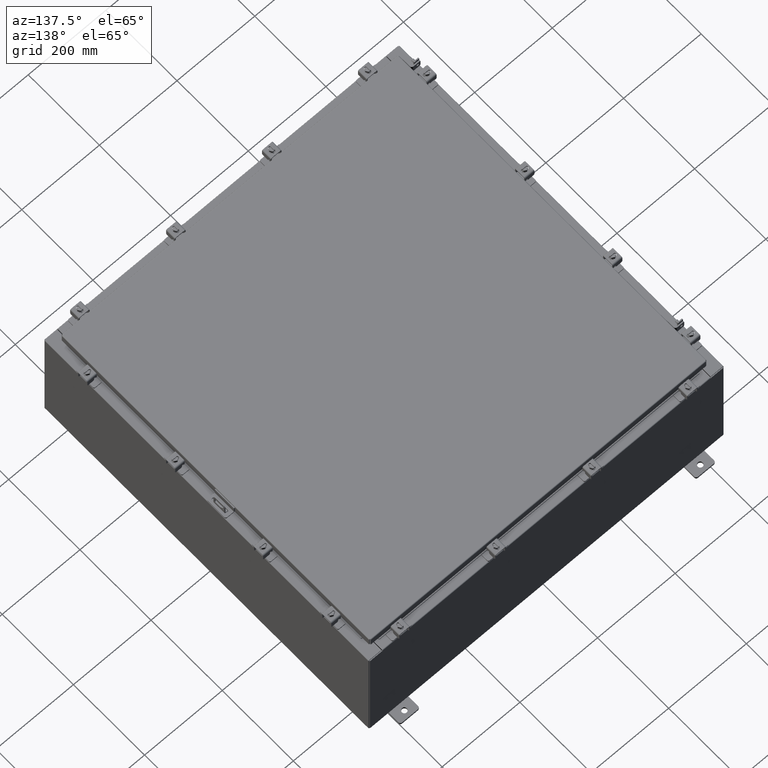
[diagram: clean part render]
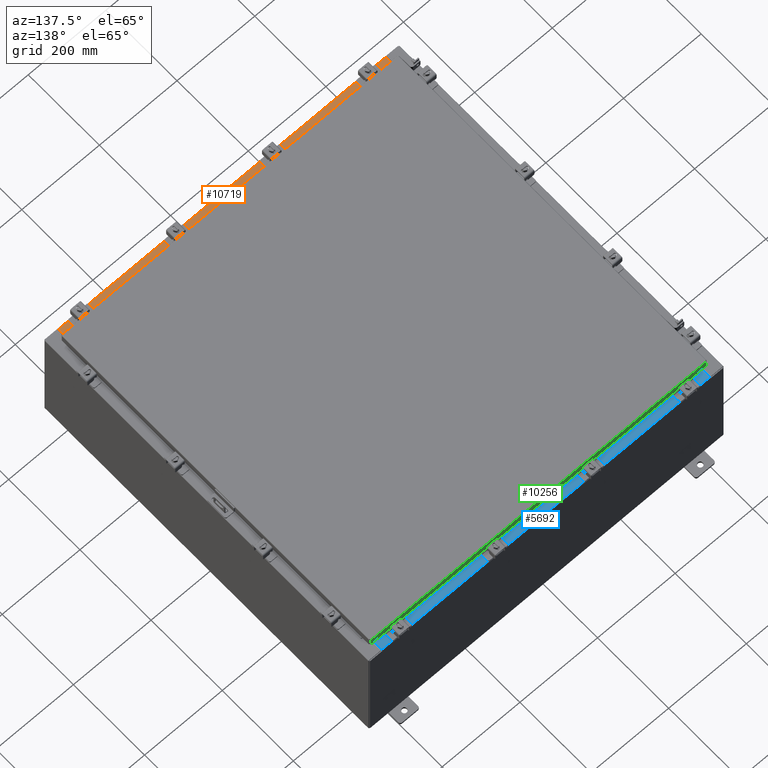
[diagram: same view with three faces highlighted in distinct colors, each labeled with its STEP entity id]
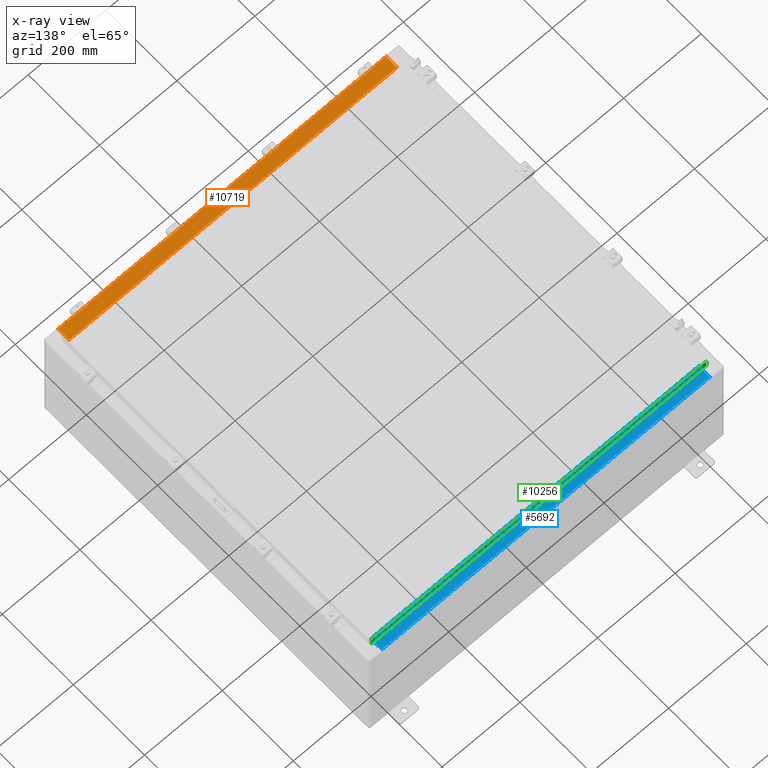
[diagram: x-ray of the same camera — body ghosted, the three highlighted faces saturated]
A machine part, auxiliary view with three faces highlighted in distinct colors.
The next image is the same camera in x-ray (body ghosted, the three faces saturated) — at least one of them is partly hidden behind the body in this view.
Their STEP definitions:

[orange] entity #10719 — the highlighted planar face has unit normal (-0, -0, 1).
#785 = ORIENTED_EDGE ( 'NONE', *, *, #17937, .F. ) ;
#2306 = PLANE ( 'NONE',  #18020 ) ;
#3150 = VECTOR ( 'NONE', #19606, 39.37007874015748100 ) ;
#3269 = DIRECTION ( 'NONE',  ( -0.0000000000000000000, 1.000000000000000000, -2.674785894579892700E-015 ) ) ;
#3815 = VERTEX_POINT ( 'NONE', #21707 ) ;
#4048 = VERTEX_POINT ( 'NONE', #9841 ) ;
#5089 = VERTEX_POINT ( 'NONE', #18808 ) ;
#5326 = CARTESIAN_POINT ( 'NONE',  ( -16.63719999999999600, -0.07469999999999973900, 5.999999999999999100 ) ) ;
#6332 = CARTESIAN_POINT ( 'NONE',  ( 16.63720000000000400, -1.300299999999999800, 6.000000000000003600 ) ) ;
#8162 = VECTOR ( 'NONE', #14498, 39.37007874015748100 ) ;
#8266 = ORIENTED_EDGE ( 'NONE', *, *, #21271, .F. ) ;
#8442 = LINE ( 'NONE', #6332, #23878 ) ;
#8696 = DIRECTION ( 'NONE',  ( 0.0000000000000000000, -1.000000000000000000, 2.674785894579892700E-015 ) ) ;
#8831 = LINE ( 'NONE', #18571, #8162 ) ;
#8924 = ORIENTED_EDGE ( 'NONE', *, *, #14159, .F. ) ;
#9279 = ORIENTED_EDGE ( 'NONE', *, *, #24616, .T. ) ;
#9841 = CARTESIAN_POINT ( 'NONE',  ( -16.63719999999999600, -1.287299999999998600, 6.000000000000002700 ) ) ;
#10719 = ADVANCED_FACE ( 'NONE', ( #25327 ), #2306, .T. ) ;
#12602 = DIRECTION ( 'NONE',  ( -0.0000000000000000000, -1.000000000000000000, 3.566381192773190000E-015 ) ) ;
#14159 = EDGE_CURVE ( 'NONE', #3815, #4048, #19997, .T. ) ;
#14498 = DIRECTION ( 'NONE',  ( -1.000000000000000000, 3.284023746380717400E-017, -8.784060394284559800E-032 ) ) ;
#16188 = LINE ( 'NONE', #5326, #26616 ) ;
#16885 = VERTEX_POINT ( 'NONE', #20680 ) ;
#17492 = CARTESIAN_POINT ( 'NONE',  ( 16.63720000000000400, -1.287299999999999400, 6.000000000000001800 ) ) ;
#17937 = EDGE_CURVE ( 'NONE', #4048, #5089, #16188, .T. ) ;
#18020 = AXIS2_PLACEMENT_3D ( 'NONE', #19101, #21296, #8696 ) ;
#18571 = CARTESIAN_POINT ( 'NONE',  ( -5.156971724347648400E-018, -0.08769999999999972300, 5.999999999999999100 ) ) ;
#18808 = CARTESIAN_POINT ( 'NONE',  ( -16.63719999999999600, -0.08769999999999972300, 5.999999999999999100 ) ) ;
#19101 = CARTESIAN_POINT ( 'NONE',  ( -2.276882898771239300E-018, 1.610972251716581800E-014, 5.999999999999999100 ) ) ;
#19606 = DIRECTION ( 'NONE',  ( -1.000000000000000000, 0.0000000000000000000, 0.0000000000000000000 ) ) ;
#19997 = LINE ( 'NONE', #17492, #3150 ) ;
#20680 = CARTESIAN_POINT ( 'NONE',  ( 16.63720000000000400, -0.08769999999999948700, 5.999999999999999100 ) ) ;
#21271 = EDGE_CURVE ( 'NONE', #16885, #3815, #8442, .T. ) ;
#21296 = DIRECTION ( 'NONE',  ( 0.0000000000000000000, 2.674785894579892700E-015, 1.000000000000000000 ) ) ;
#21707 = CARTESIAN_POINT ( 'NONE',  ( 16.63720000000000400, -1.287299999999999400, 6.000000000000003600 ) ) ;
#23094 = EDGE_LOOP ( 'NONE', ( #785, #8924, #8266, #9279 ) ) ;
#23878 = VECTOR ( 'NONE', #12602, 39.37007874015748100 ) ;
#24616 = EDGE_CURVE ( 'NONE', #16885, #5089, #8831, .T. ) ;
#25327 = FACE_OUTER_BOUND ( 'NONE', #23094, .T. ) ;
#26616 = VECTOR ( 'NONE', #3269, 39.37007874015748100 ) ;

[blue] entity #5692 — the highlighted planar face has unit normal (0, 0, 1).
#474 = ORIENTED_EDGE ( 'NONE', *, *, #21125, .F. ) ;
#1526 = DIRECTION ( 'NONE',  ( 0.0000000000000000000, 2.674785894579892700E-015, 1.000000000000000000 ) ) ;
#2648 = DIRECTION ( 'NONE',  ( -1.000000000000000000, 0.0000000000000000000, 0.0000000000000000000 ) ) ;
#2902 = DIRECTION ( 'NONE',  ( -0.0000000000000000000, 1.000000000000000000, -2.674785894579892700E-015 ) ) ;
#3541 = LINE ( 'NONE', #22725, #25910 ) ;
#3854 = EDGE_CURVE ( 'NONE', #4618, #16805, #20594, .T. ) ;
#4618 = VERTEX_POINT ( 'NONE', #24126 ) ;
#4813 = CARTESIAN_POINT ( 'NONE',  ( 16.63720000000000400, -0.08769999999999948700, 5.999999999999999100 ) ) ;
#5341 = AXIS2_PLACEMENT_3D ( 'NONE', #7792, #1526, #16292 ) ;
#5692 = ADVANCED_FACE ( 'NONE', ( #17231 ), #14161, .T. ) ;
#6804 = CARTESIAN_POINT ( 'NONE',  ( 16.63720000000000400, -1.287299999999999400, 6.000000000000001800 ) ) ;
#7792 = CARTESIAN_POINT ( 'NONE',  ( -2.276882898771239300E-018, 1.610972251716581800E-014, 5.999999999999999100 ) ) ;
#8031 = DIRECTION ( 'NONE',  ( -1.000000000000000000, 3.284023746380717400E-017, -8.784060394284559800E-032 ) ) ;
#8277 = DIRECTION ( 'NONE',  ( -0.0000000000000000000, -1.000000000000000000, 3.566381192773190000E-015 ) ) ;
#10404 = CARTESIAN_POINT ( 'NONE',  ( 16.63720000000000400, -1.287299999999999400, 6.000000000000003600 ) ) ;
#10896 = VECTOR ( 'NONE', #8277, 39.37007874015748100 ) ;
#11673 = VERTEX_POINT ( 'NONE', #4813 ) ;
#11958 = EDGE_CURVE ( 'NONE', #11673, #16805, #3541, .T. ) ;
#14161 = PLANE ( 'NONE',  #5341 ) ;
#15561 = CARTESIAN_POINT ( 'NONE',  ( -16.63719999999999600, -0.07469999999999973900, 5.999999999999999100 ) ) ;
#15821 = ORIENTED_EDGE ( 'NONE', *, *, #11958, .T. ) ;
#16031 = LINE ( 'NONE', #6804, #20959 ) ;
#16292 = DIRECTION ( 'NONE',  ( 0.0000000000000000000, -1.000000000000000000, 2.674785894579892700E-015 ) ) ;
#16508 = LINE ( 'NONE', #22957, #10896 ) ;
#16805 = VERTEX_POINT ( 'NONE', #22567 ) ;
#17231 = FACE_OUTER_BOUND ( 'NONE', #25199, .T. ) ;
#18161 = VERTEX_POINT ( 'NONE', #10404 ) ;
#18166 = EDGE_CURVE ( 'NONE', #11673, #18161, #16508, .T. ) ;
#20594 = LINE ( 'NONE', #15561, #26105 ) ;
#20777 = ORIENTED_EDGE ( 'NONE', *, *, #18166, .F. ) ;
#20959 = VECTOR ( 'NONE', #2648, 39.37007874015748100 ) ;
#21125 = EDGE_CURVE ( 'NONE', #18161, #4618, #16031, .T. ) ;
#22567 = CARTESIAN_POINT ( 'NONE',  ( -16.63719999999999600, -0.08769999999999972300, 5.999999999999999100 ) ) ;
#22725 = CARTESIAN_POINT ( 'NONE',  ( -5.156971724347648400E-018, -0.08769999999999972300, 5.999999999999999100 ) ) ;
#22957 = CARTESIAN_POINT ( 'NONE',  ( 16.63720000000000400, -1.300299999999999800, 6.000000000000003600 ) ) ;
#24126 = CARTESIAN_POINT ( 'NONE',  ( -16.63719999999999600, -1.287299999999998600, 6.000000000000002700 ) ) ;
#25199 = EDGE_LOOP ( 'NONE', ( #26564, #474, #20777, #15821 ) ) ;
#25910 = VECTOR ( 'NONE', #8031, 39.37007874015748100 ) ;
#26105 = VECTOR ( 'NONE', #2902, 39.37007874015748100 ) ;
#26564 = ORIENTED_EDGE ( 'NONE', *, *, #3854, .F. ) ;

[green] entity #10256 — the highlighted planar face has unit normal (0, -1, -0).
#43 = VECTOR ( 'NONE', #2026, 39.37007874015748100 ) ;
#78 = CARTESIAN_POINT ( 'NONE',  ( -17.09400000000000100, 17.09400000000000100, -0.8500000000000043100 ) ) ;
#202 = ORIENTED_EDGE ( 'NONE', *, *, #5878, .F. ) ;
#687 = LINE ( 'NONE', #14675, #43 ) ;
#1204 = DIRECTION ( 'NONE',  ( 1.000000000000000000, -4.379057701015054300E-047, 1.198599505819701500E-016 ) ) ;
#1352 = CARTESIAN_POINT ( 'NONE',  ( -17.00515786437626900, 17.09400000000000100, -0.07470000000000015500 ) ) ;
#2008 = VECTOR ( 'NONE', #23131, 39.37007874015748100 ) ;
#2026 = DIRECTION ( 'NONE',  ( 0.0000000000000000000, 2.818880942772345500E-015, -1.000000000000000000 ) ) ;
#2313 = FACE_OUTER_BOUND ( 'NONE', #5713, .T. ) ;
#2671 = LINE ( 'NONE', #78, #2008 ) ;
#2964 = PLANE ( 'NONE',  #21863 ) ;
#3404 = CARTESIAN_POINT ( 'NONE',  ( -17.00515786437626900, 17.09400000000000100, -0.08770000000000026400 ) ) ;
#3880 = LINE ( 'NONE', #12665, #24938 ) ;
#4134 = DIRECTION ( 'NONE',  ( 1.000000000000000000, -0.0000000000000000000, -0.0000000000000000000 ) ) ;
#5110 = DIRECTION ( 'NONE',  ( 3.378709304971506500E-031, -1.000000000000000000, -2.818880942772345100E-015 ) ) ;
#5601 = EDGE_CURVE ( 'NONE', #26599, #8654, #7315, .T. ) ;
#5713 = EDGE_LOOP ( 'NONE', ( #24511, #14877, #9921, #12582, #202, #23764 ) ) ;
#5878 = EDGE_CURVE ( 'NONE', #8654, #15207, #2671, .T. ) ;
#6303 = DIRECTION ( 'NONE',  ( -1.000000000000000000, -3.378709304971507400E-031, -9.209576350126241600E-046 ) ) ;
#6483 = EDGE_CURVE ( 'NONE', #19664, #25626, #687, .T. ) ;
#6920 = CARTESIAN_POINT ( 'NONE',  ( 16.25515786437626900, 17.09399999999998700, -0.8500000000000065300 ) ) ;
#7177 = CARTESIAN_POINT ( 'NONE',  ( -17.00515786437626900, 17.09400000000000100, -0.8500000000000043100 ) ) ;
#7290 = VERTEX_POINT ( 'NONE', #6920 ) ;
#7315 = LINE ( 'NONE', #1352, #19202 ) ;
#8654 = VERTEX_POINT ( 'NONE', #7177 ) ;
#9921 = ORIENTED_EDGE ( 'NONE', *, *, #17303, .F. ) ;
#10256 = ADVANCED_FACE ( 'NONE', ( #2313 ), #2964, .F. ) ;
#12349 = CARTESIAN_POINT ( 'NONE',  ( -16.25515786437626500, 17.09399999999998700, -0.8500000000000065300 ) ) ;
#12487 = LINE ( 'NONE', #18906, #22338 ) ;
#12582 = ORIENTED_EDGE ( 'NONE', *, *, #19023, .F. ) ;
#12665 = CARTESIAN_POINT ( 'NONE',  ( -17.09400000000000100, 17.09400000000000100, -0.08770000000000026400 ) ) ;
#13837 = CARTESIAN_POINT ( 'NONE',  ( -17.09400000000000100, 17.09400000000000100, -0.8500000000000043100 ) ) ;
#14675 = CARTESIAN_POINT ( 'NONE',  ( 17.00515786437626900, 17.09400000000000100, 4.808052468849102900E-014 ) ) ;
#14877 = ORIENTED_EDGE ( 'NONE', *, *, #6483, .T. ) ;
#15207 = VERTEX_POINT ( 'NONE', #12349 ) ;
#16118 = DIRECTION ( 'NONE',  ( -0.0000000000000000000, 2.818880942772345500E-015, -1.000000000000000000 ) ) ;
#17303 = EDGE_CURVE ( 'NONE', #7290, #25626, #23752, .T. ) ;
#17530 = VECTOR ( 'NONE', #1204, 39.37007874015748100 ) ;
#17742 = CARTESIAN_POINT ( 'NONE',  ( 0.0000000000000000000, 17.09400000000000100, 4.808052468849102900E-014 ) ) ;
#18906 = CARTESIAN_POINT ( 'NONE',  ( -16.25515786437626900, 17.09399999999998700, -0.8500000000000065300 ) ) ;
#19023 = EDGE_CURVE ( 'NONE', #15207, #7290, #12487, .T. ) ;
#19202 = VECTOR ( 'NONE', #16118, 39.37007874015748100 ) ;
#19664 = VERTEX_POINT ( 'NONE', #21061 ) ;
#19705 = CARTESIAN_POINT ( 'NONE',  ( 17.00515786437626900, 17.09400000000000100, -0.8499999999999999800 ) ) ;
#19862 = DIRECTION ( 'NONE',  ( 0.0000000000000000000, 2.818880942772345100E-015, -1.000000000000000000 ) ) ;
#21061 = CARTESIAN_POINT ( 'NONE',  ( 17.00515786437626900, 17.09400000000000100, -0.08770000000000026400 ) ) ;
#21863 = AXIS2_PLACEMENT_3D ( 'NONE', #17742, #5110, #19862 ) ;
#22338 = VECTOR ( 'NONE', #4134, 39.37007874015748100 ) ;
#23131 = DIRECTION ( 'NONE',  ( 1.000000000000000000, -4.379057701015054300E-047, 1.198599505819701500E-016 ) ) ;
#23752 = LINE ( 'NONE', #13837, #17530 ) ;
#23764 = ORIENTED_EDGE ( 'NONE', *, *, #5601, .F. ) ;
#23930 = EDGE_CURVE ( 'NONE', #19664, #26599, #3880, .T. ) ;
#24511 = ORIENTED_EDGE ( 'NONE', *, *, #23930, .F. ) ;
#24938 = VECTOR ( 'NONE', #6303, 39.37007874015748100 ) ;
#25626 = VERTEX_POINT ( 'NONE', #19705 ) ;
#26599 = VERTEX_POINT ( 'NONE', #3404 ) ;